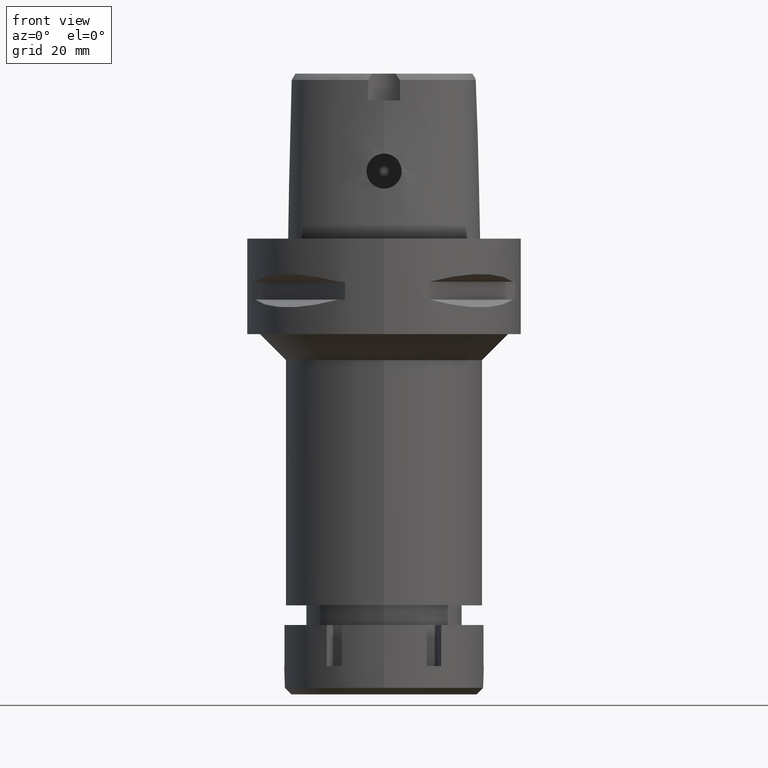
[diagram: clean part render]
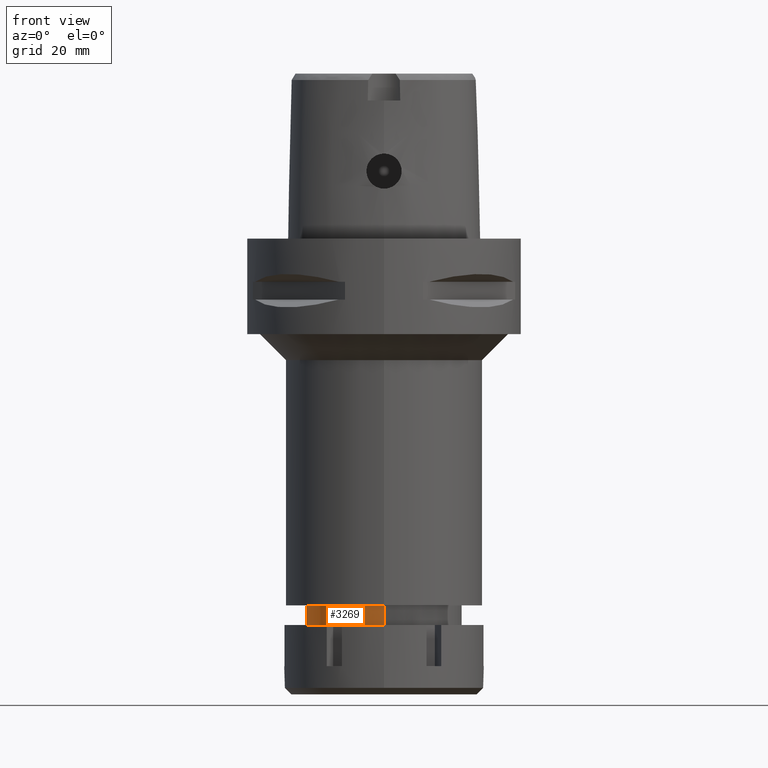
[diagram: same view with one face highlighted and labeled with its STEP entity id]
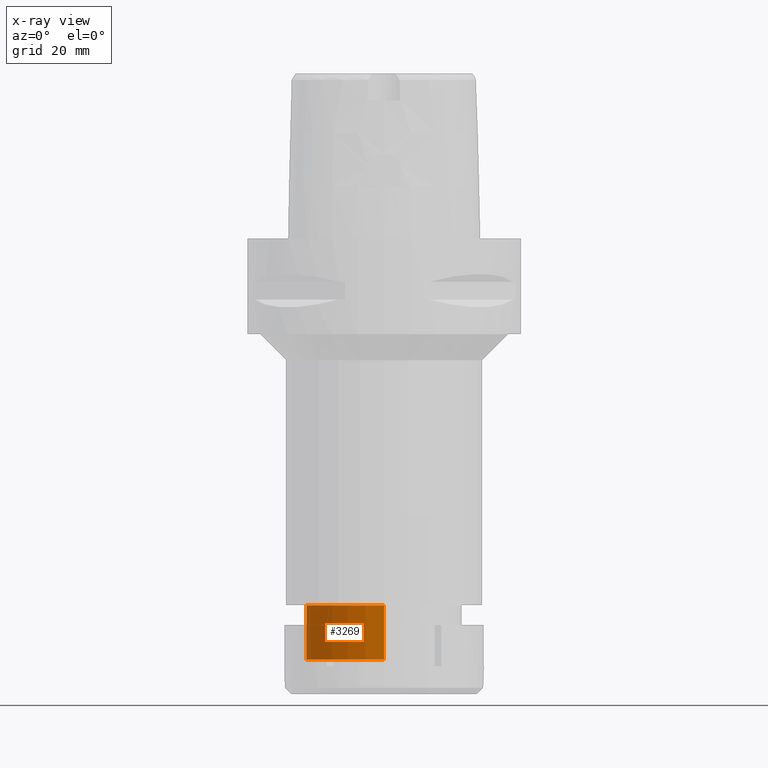
[diagram: x-ray of the same camera — body ghosted, the highlighted face saturated]
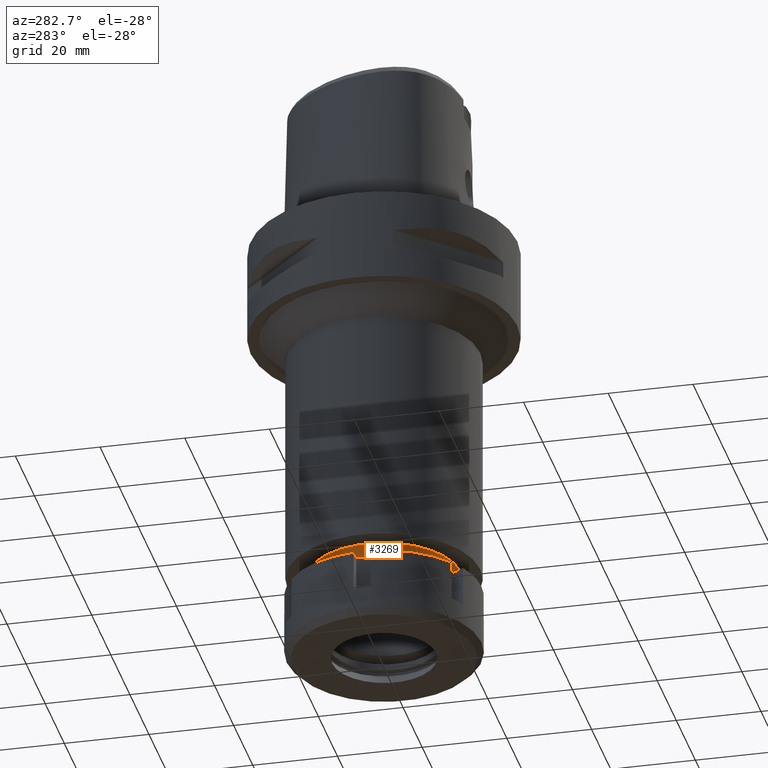
[diagram: same view with one face highlighted and labeled with its STEP entity id]
A machine part, front view. The second image highlights one B-rep face of the part: STEP entity #3269.
The next image is the same camera in x-ray: the body ghosted, the highlighted face saturated — about 0% of this face is hidden behind the body in this view.
A second angle (auxiliary view) of the same face is appended — the face is thin or edge-on in the first view.
In plain terms, the highlighted cylindrical surface (partial cylindrical patch) has radius 18 mm, axis along (0, 0, -1).
Its self-contained STEP definition (entity closure, byte-faithful):
#821 = CARTESIAN_POINT ( 'NONE',  ( 0.0000000000000000000, 1.284042168905999827E-14, -97.00000000000000000 ) ) ;
#846 = CYLINDRICAL_SURFACE ( 'NONE', #1601, 18.00000000000000000 ) ;
#1074 = EDGE_CURVE ( 'NONE', #3435, #3902, #3846, .T. ) ;
#1237 = AXIS2_PLACEMENT_3D ( 'NONE', #4226, #5053, #2893 ) ;
#1280 = DIRECTION ( 'NONE',  ( 0.0000000000000000000, 0.0000000000000000000, -1.000000000000000000 ) ) ;
#1539 = ORIENTED_EDGE ( 'NONE', *, *, #2300, .T. ) ;
#1540 = EDGE_LOOP ( 'NONE', ( #4437, #5172, #2599, #1539 ) ) ;
#1601 = AXIS2_PLACEMENT_3D ( 'NONE', #4723, #1280, #2516 ) ;
#1800 = CARTESIAN_POINT ( 'NONE',  ( 0.0000000000000000000, -18.00000000000000000, -84.50000000000000000 ) ) ;
#1929 = VECTOR ( 'NONE', #5497, 1000.000000000000000 ) ;
#2146 = FACE_OUTER_BOUND ( 'NONE', #1540, .T. ) ;
#2149 = EDGE_CURVE ( 'NONE', #3435, #2326, #2752, .T. ) ;
#2300 = EDGE_CURVE ( 'NONE', #2326, #4293, #4310, .T. ) ;
#2326 = VERTEX_POINT ( 'NONE', #4761 ) ;
#2516 = DIRECTION ( 'NONE',  ( 0.0000000000000000000, -1.000000000000000000, 0.0000000000000000000 ) ) ;
#2530 = DIRECTION ( 'NONE',  ( 0.0000000000000000000, 1.000000000000000000, 0.0000000000000000000 ) ) ;
#2599 = ORIENTED_EDGE ( 'NONE', *, *, #2149, .T. ) ;
#2658 = CARTESIAN_POINT ( 'NONE',  ( 0.0000000000000000000, 18.00000000000000000, -84.50000000000000000 ) ) ;
#2752 = CIRCLE ( 'NONE', #1237, 18.00000000000000000 ) ;
#2893 = DIRECTION ( 'NONE',  ( 0.0000000000000000000, -1.000000000000000000, 0.0000000000000000000 ) ) ;
#3269 = ADVANCED_FACE ( 'NONE', ( #2146 ), #846, .T. ) ;
#3435 = VERTEX_POINT ( 'NONE', #1800 ) ;
#3470 = VECTOR ( 'NONE', #4283, 1000.000000000000000 ) ;
#3480 = CIRCLE ( 'NONE', #4272, 18.00000000000000000 ) ;
#3537 = EDGE_CURVE ( 'NONE', #4293, #3902, #3480, .T. ) ;
#3846 = LINE ( 'NONE', #4602, #1929 ) ;
#3902 = VERTEX_POINT ( 'NONE', #4285 ) ;
#4226 = CARTESIAN_POINT ( 'NONE',  ( 0.0000000000000000000, 1.284042168905999827E-14, -84.50000000000000000 ) ) ;
#4272 = AXIS2_PLACEMENT_3D ( 'NONE', #821, #5554, #2530 ) ;
#4283 = DIRECTION ( 'NONE',  ( 0.0000000000000000000, 0.0000000000000000000, -1.000000000000000000 ) ) ;
#4285 = CARTESIAN_POINT ( 'NONE',  ( 0.0000000000000000000, -18.00000000000000000, -97.00000000000000000 ) ) ;
#4293 = VERTEX_POINT ( 'NONE', #5078 ) ;
#4310 = LINE ( 'NONE', #2658, #3470 ) ;
#4437 = ORIENTED_EDGE ( 'NONE', *, *, #3537, .T. ) ;
#4602 = CARTESIAN_POINT ( 'NONE',  ( 0.0000000000000000000, -18.00000000000000000, -84.50000000000000000 ) ) ;
#4723 = CARTESIAN_POINT ( 'NONE',  ( 0.0000000000000000000, 1.284042168905999827E-14, 4.850000000000000533 ) ) ;
#4761 = CARTESIAN_POINT ( 'NONE',  ( 0.0000000000000000000, 18.00000000000000000, -84.50000000000000000 ) ) ;
#5053 = DIRECTION ( 'NONE',  ( 0.0000000000000000000, 0.0000000000000000000, -1.000000000000000000 ) ) ;
#5078 = CARTESIAN_POINT ( 'NONE',  ( 0.0000000000000000000, 18.00000000000000000, -97.00000000000000000 ) ) ;
#5172 = ORIENTED_EDGE ( 'NONE', *, *, #1074, .F. ) ;
#5497 = DIRECTION ( 'NONE',  ( 0.0000000000000000000, 0.0000000000000000000, -1.000000000000000000 ) ) ;
#5554 = DIRECTION ( 'NONE',  ( 0.0000000000000000000, 0.0000000000000000000, 1.000000000000000000 ) ) ;